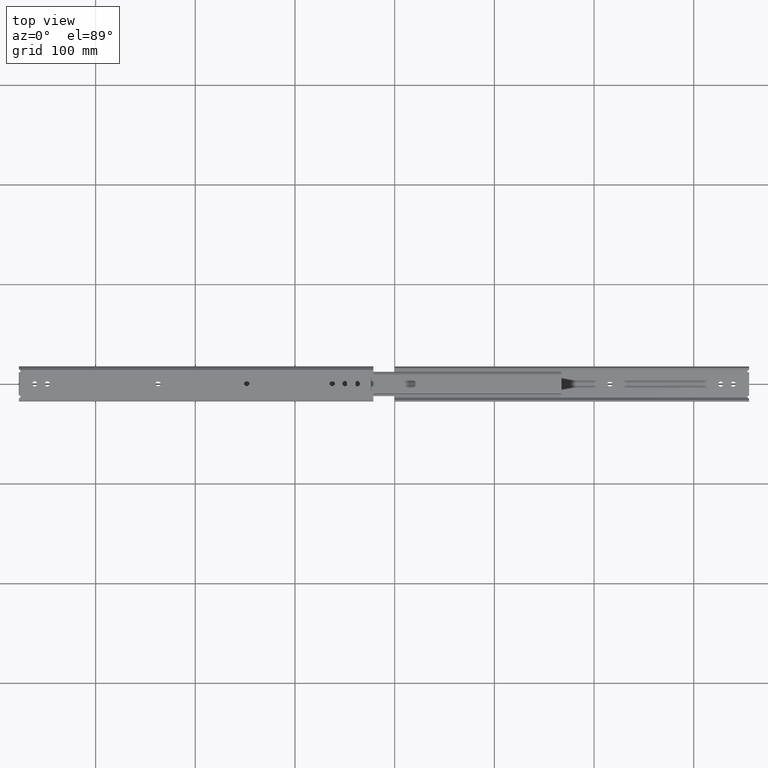
[diagram: clean part render]
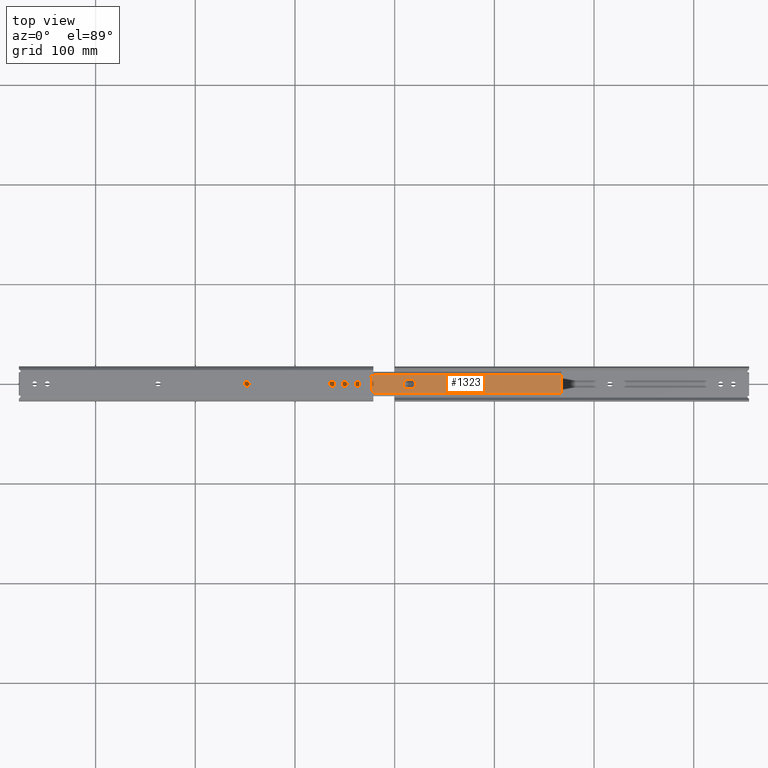
[diagram: same view with one face highlighted and labeled with its STEP entity id]
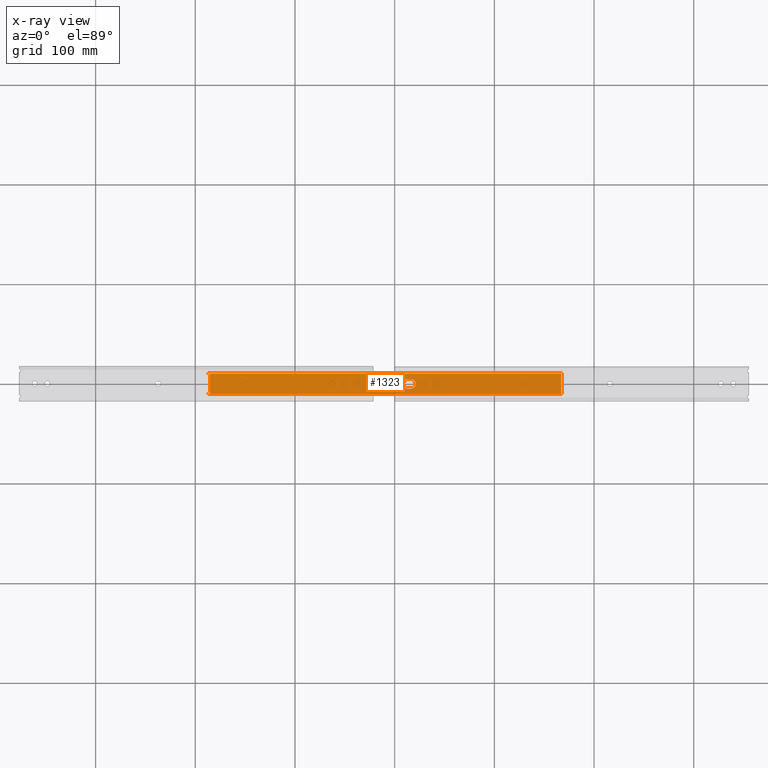
[diagram: x-ray of the same camera — body ghosted, the highlighted face saturated]
A machine part, top view. The second image highlights one B-rep face of the part: STEP entity #1323.
The next image is the same camera in x-ray: the body ghosted, the highlighted face saturated — about 0% of this face is hidden behind the body in this view.
In plain terms, the highlighted planar face has unit normal (0, 0, -1).
Its self-contained STEP definition (entity closure, byte-faithful):
#15 = EDGE_CURVE ( 'NONE', #2241, #528, #2789, .T. ) ;
#20 = CARTESIAN_POINT ( 'NONE',  ( 188.4999999999998600, -10.32509259386303800, -7.999999999999786800 ) ) ;
#29 = VECTOR ( 'NONE', #3100, 1000.000000000000000 ) ;
#169 = EDGE_CURVE ( 'NONE', #326, #2953, #4592, .T. ) ;
#294 = ORIENTED_EDGE ( 'NONE', *, *, #4503, .T. ) ;
#309 = CARTESIAN_POINT ( 'NONE',  ( 188.5000000000000300, 10.32509259386078200, -7.999999999999641200 ) ) ;
#325 = EDGE_CURVE ( 'NONE', #2993, #3315, #2484, .T. ) ;
#326 = VERTEX_POINT ( 'NONE', #4012 ) ;
#327 = CARTESIAN_POINT ( 'NONE',  ( -165.4999999999999700, 10.32509259386325500, -7.999999999999641200 ) ) ;
#412 = DIRECTION ( 'NONE',  ( 1.000000000000000000, -6.982962677686266700E-015, -4.876176775795935800E-029 ) ) ;
#436 = CARTESIAN_POINT ( 'NONE',  ( -165.5000000000000900, -4.749999999998586900, -7.999999999999746900 ) ) ;
#443 = AXIS2_PLACEMENT_3D ( 'NONE', #2965, #4446, #2311 ) ;
#454 = EDGE_CURVE ( 'NONE', #2953, #2993, #3826, .T. ) ;
#472 = AXIS2_PLACEMENT_3D ( 'NONE', #3853, #1725, #4225 ) ;
#528 = VERTEX_POINT ( 'NONE', #3116 ) ;
#707 = EDGE_CURVE ( 'NONE', #3315, #3113, #1747, .T. ) ;
#735 = ORIENTED_EDGE ( 'NONE', *, *, #2522, .T. ) ;
#793 = VECTOR ( 'NONE', #3122, 1000.000000000000000 ) ;
#795 = LINE ( 'NONE', #436, #4489 ) ;
#796 = VECTOR ( 'NONE', #1048, 1000.000000000000000 ) ;
#797 = CARTESIAN_POINT ( 'NONE',  ( -165.5000000000000900, -9.699999999998661700, -7.999999999999781500 ) ) ;
#859 = CARTESIAN_POINT ( 'NONE',  ( 37.69999999999992500, -4.750000000000060400, -7.999999999999746900 ) ) ;
#869 = DIRECTION ( 'NONE',  ( 0.0000000000000000000, 6.982962677686266700E-015, -1.000000000000000000 ) ) ;
#875 = DIRECTION ( 'NONE',  ( 6.982962677686267500E-015, 1.000000000000000000, 6.982962677686267500E-015 ) ) ;
#896 = CARTESIAN_POINT ( 'NONE',  ( -165.5000000000000900, -10.32509259386056600, -7.999999999999786800 ) ) ;
#929 = DIRECTION ( 'NONE',  ( -1.000000000000000000, 6.982962677686266700E-015, 4.876176775795935800E-029 ) ) ;
#933 = EDGE_CURVE ( 'NONE', #1874, #2061, #4314, .T. ) ;
#967 = ORIENTED_EDGE ( 'NONE', *, *, #169, .T. ) ;
#989 = CARTESIAN_POINT ( 'NONE',  ( -163.9000000000000300, 1.332151022761982200E-012, -7.999999999999714000 ) ) ;
#997 = EDGE_LOOP ( 'NONE', ( #967, #3707, #3821, #3325, #1707, #3219, #1162, #2766, #2623, #1702 ) ) ;
#1005 = EDGE_CURVE ( 'NONE', #3855, #4374, #1368, .T. ) ;
#1025 = EDGE_CURVE ( 'NONE', #1371, #1874, #4095, .T. ) ;
#1028 = VECTOR ( 'NONE', #1160, 1000.000000000000000 ) ;
#1048 = DIRECTION ( 'NONE',  ( -1.000000000000000000, 6.982962677686266700E-015, 4.876176775795935800E-029 ) ) ;
#1127 = VECTOR ( 'NONE', #1898, 1000.000000000000000 ) ;
#1160 = DIRECTION ( 'NONE',  ( 6.982962677686267500E-015, 1.000000000000000000, 6.982962677686267500E-015 ) ) ;
#1162 = ORIENTED_EDGE ( 'NONE', *, *, #1755, .T. ) ;
#1197 = EDGE_CURVE ( 'NONE', #2119, #4042, #3286, .T. ) ;
#1224 = EDGE_LOOP ( 'NONE', ( #2547, #4449, #294, #2989, #735 ) ) ;
#1323 = ADVANCED_FACE ( 'NONE', ( #1901, #3810 ), #3222, .F. ) ;
#1368 = LINE ( 'NONE', #1983, #3140 ) ;
#1371 = VERTEX_POINT ( 'NONE', #4515 ) ;
#1533 = VECTOR ( 'NONE', #875, 1000.000000000000000 ) ;
#1695 = AXIS2_PLACEMENT_3D ( 'NONE', #4057, #869, #929 ) ;
#1702 = ORIENTED_EDGE ( 'NONE', *, *, #2298, .T. ) ;
#1707 = ORIENTED_EDGE ( 'NONE', *, *, #1805, .F. ) ;
#1725 = DIRECTION ( 'NONE',  ( 0.0000000000000000000, 6.982962677686266700E-015, -1.000000000000000000 ) ) ;
#1747 = LINE ( 'NONE', #797, #796 ) ;
#1755 = EDGE_CURVE ( 'NONE', #4374, #4042, #2030, .T. ) ;
#1768 = CARTESIAN_POINT ( 'NONE',  ( -163.8999999999999800, 8.200000000001333300, -7.999999999999656300 ) ) ;
#1798 = DIRECTION ( 'NONE',  ( 1.000000000000000000, -6.982962677686266700E-015, -4.876176775795935800E-029 ) ) ;
#1805 = EDGE_CURVE ( 'NONE', #3855, #3113, #2896, .T. ) ;
#1874 = VERTEX_POINT ( 'NONE', #4452 ) ;
#1898 = DIRECTION ( 'NONE',  ( 6.982962677686267500E-015, 1.000000000000000000, 6.982962677686267500E-015 ) ) ;
#1899 = EDGE_CURVE ( 'NONE', #4317, #2119, #3422, .T. ) ;
#1901 = FACE_BOUND ( 'NONE', #1224, .T. ) ;
#1902 = CIRCLE ( 'NONE', #472, 4.750000000000000900 ) ;
#1983 = CARTESIAN_POINT ( 'NONE',  ( -165.5000000000000900, -10.32509259386056600, -7.999999999999786800 ) ) ;
#1999 = CARTESIAN_POINT ( 'NONE',  ( -163.9000000000000300, 1.332151022761982200E-012, -7.999999999999714000 ) ) ;
#2024 = CARTESIAN_POINT ( 'NONE',  ( -165.5000000000000300, 1.343323763046280200E-012, -7.999999999999714000 ) ) ;
#2030 = LINE ( 'NONE', #4385, #1127 ) ;
#2061 = VERTEX_POINT ( 'NONE', #859 ) ;
#2119 = VERTEX_POINT ( 'NONE', #2414 ) ;
#2163 = CARTESIAN_POINT ( 'NONE',  ( -165.4999999999999700, 4.750000000001413100, -7.999999999999681100 ) ) ;
#2206 = CARTESIAN_POINT ( 'NONE',  ( -163.9000000000000900, -8.199999999998667000, -7.999999999999770800 ) ) ;
#2224 = DIRECTION ( 'NONE',  ( -1.000000000000000000, 7.254013220807639700E-015, 5.065450358434250000E-029 ) ) ;
#2241 = VERTEX_POINT ( 'NONE', #4124 ) ;
#2272 = CARTESIAN_POINT ( 'NONE',  ( -165.5000000000000900, -9.699999999998661700, -7.999999999999781500 ) ) ;
#2298 = EDGE_CURVE ( 'NONE', #4317, #326, #4587, .T. ) ;
#2311 = DIRECTION ( 'NONE',  ( -1.000000000000000000, 6.982962677686264300E-015, 0.0000000000000000000 ) ) ;
#2390 = DIRECTION ( 'NONE',  ( -1.000000000000000000, 6.982962677686269100E-015, 0.0000000000000000000 ) ) ;
#2414 = CARTESIAN_POINT ( 'NONE',  ( -165.4999999999999700, 10.32509259386325500, -7.999999999999641200 ) ) ;
#2484 = LINE ( 'NONE', #2762, #4272 ) ;
#2522 = EDGE_CURVE ( 'NONE', #528, #1371, #1902, .T. ) ;
#2547 = ORIENTED_EDGE ( 'NONE', *, *, #1025, .T. ) ;
#2568 = DIRECTION ( 'NONE',  ( -6.982962677686266700E-015, -1.000000000000000000, -6.982962677686266700E-015 ) ) ;
#2623 = ORIENTED_EDGE ( 'NONE', *, *, #1899, .F. ) ;
#2762 = CARTESIAN_POINT ( 'NONE',  ( -163.9000000000000300, 1.332151022761982200E-012, -7.999999999999714000 ) ) ;
#2766 = ORIENTED_EDGE ( 'NONE', *, *, #1197, .F. ) ;
#2789 = CIRCLE ( 'NONE', #443, 4.750000000000000900 ) ;
#2896 = LINE ( 'NONE', #4349, #1028 ) ;
#2953 = VERTEX_POINT ( 'NONE', #1768 ) ;
#2965 = CARTESIAN_POINT ( 'NONE',  ( 34.49999999999992200, -1.640950734767203800E-014, -7.999999999999714000 ) ) ;
#2989 = ORIENTED_EDGE ( 'NONE', *, *, #15, .T. ) ;
#2993 = VERTEX_POINT ( 'NONE', #2206 ) ;
#3061 = AXIS2_PLACEMENT_3D ( 'NONE', #3065, #3786, #2390 ) ;
#3065 = CARTESIAN_POINT ( 'NONE',  ( 37.69999999999995300, -3.934281837985901500E-014, -7.999999999999714000 ) ) ;
#3100 = DIRECTION ( 'NONE',  ( -6.982962677686266700E-015, -1.000000000000000000, -6.982962677686266700E-015 ) ) ;
#3113 = VERTEX_POINT ( 'NONE', #2272 ) ;
#3116 = CARTESIAN_POINT ( 'NONE',  ( 29.74999999999991800, 2.234593551348779900E-014, -7.999999999999714000 ) ) ;
#3122 = DIRECTION ( 'NONE',  ( -6.982962677686266700E-015, -1.000000000000000000, -6.982962677686266700E-015 ) ) ;
#3140 = VECTOR ( 'NONE', #1798, 1000.000000000000000 ) ;
#3188 = VECTOR ( 'NONE', #412, 1000.000000000000000 ) ;
#3219 = ORIENTED_EDGE ( 'NONE', *, *, #1005, .T. ) ;
#3222 = PLANE ( 'NONE',  #1695 ) ;
#3286 = LINE ( 'NONE', #327, #3188 ) ;
#3315 = VERTEX_POINT ( 'NONE', #4242 ) ;
#3325 = ORIENTED_EDGE ( 'NONE', *, *, #707, .T. ) ;
#3387 = DIRECTION ( 'NONE',  ( 1.000000000000000000, -6.982962677686266700E-015, -4.876176775795935800E-029 ) ) ;
#3422 = LINE ( 'NONE', #2024, #1533 ) ;
#3556 = DIRECTION ( 'NONE',  ( 1.000000000000000000, -7.254013220807639700E-015, -5.065450358434250000E-029 ) ) ;
#3632 = CARTESIAN_POINT ( 'NONE',  ( -165.4999999999999700, 9.700000000001333300, -7.999999999999646500 ) ) ;
#3707 = ORIENTED_EDGE ( 'NONE', *, *, #454, .T. ) ;
#3786 = DIRECTION ( 'NONE',  ( 0.0000000000000000000, 6.982962677686266700E-015, -1.000000000000000000 ) ) ;
#3810 = FACE_OUTER_BOUND ( 'NONE', #997, .T. ) ;
#3821 = ORIENTED_EDGE ( 'NONE', *, *, #325, .T. ) ;
#3826 = LINE ( 'NONE', #1999, #29 ) ;
#3853 = CARTESIAN_POINT ( 'NONE',  ( 34.49999999999992200, -1.640950734767203800E-014, -7.999999999999714000 ) ) ;
#3855 = VERTEX_POINT ( 'NONE', #896 ) ;
#3968 = VECTOR ( 'NONE', #3556, 1000.000000000000000 ) ;
#4012 = CARTESIAN_POINT ( 'NONE',  ( -163.8999999999999800, 9.700000000001326200, -7.999999999999646500 ) ) ;
#4042 = VERTEX_POINT ( 'NONE', #309 ) ;
#4057 = CARTESIAN_POINT ( 'NONE',  ( -165.5000000000000300, 1.343323763046280200E-012, -7.999999999999714000 ) ) ;
#4095 = LINE ( 'NONE', #2163, #3968 ) ;
#4106 = CARTESIAN_POINT ( 'NONE',  ( -165.4999999999999700, 9.700000000001336900, -7.999999999999646500 ) ) ;
#4124 = CARTESIAN_POINT ( 'NONE',  ( 34.49999999999989300, -4.750000000000037300, -7.999999999999746900 ) ) ;
#4225 = DIRECTION ( 'NONE',  ( -1.000000000000000000, 6.982962677686264300E-015, 0.0000000000000000000 ) ) ;
#4242 = CARTESIAN_POINT ( 'NONE',  ( -163.9000000000000900, -9.699999999998672400, -7.999999999999781500 ) ) ;
#4272 = VECTOR ( 'NONE', #2568, 1000.000000000000000 ) ;
#4314 = CIRCLE ( 'NONE', #3061, 4.749999999999997300 ) ;
#4317 = VERTEX_POINT ( 'NONE', #3632 ) ;
#4349 = CARTESIAN_POINT ( 'NONE',  ( -165.5000000000000300, 1.343323763046280200E-012, -7.999999999999714000 ) ) ;
#4374 = VERTEX_POINT ( 'NONE', #20 ) ;
#4385 = CARTESIAN_POINT ( 'NONE',  ( 188.4999999999999400, -1.128645024854657900E-012, -7.999999999999714000 ) ) ;
#4446 = DIRECTION ( 'NONE',  ( 0.0000000000000000000, 6.982962677686266700E-015, -1.000000000000000000 ) ) ;
#4449 = ORIENTED_EDGE ( 'NONE', *, *, #933, .T. ) ;
#4452 = CARTESIAN_POINT ( 'NONE',  ( 37.69999999999998200, 4.749999999999939600, -7.999999999999681100 ) ) ;
#4484 = VECTOR ( 'NONE', #3387, 1000.000000000000000 ) ;
#4489 = VECTOR ( 'NONE', #2224, 1000.000000000000000 ) ;
#4503 = EDGE_CURVE ( 'NONE', #2061, #2241, #795, .T. ) ;
#4515 = CARTESIAN_POINT ( 'NONE',  ( 34.49999999999995000, 4.749999999999962700, -7.999999999999681100 ) ) ;
#4587 = LINE ( 'NONE', #4106, #4484 ) ;
#4592 = LINE ( 'NONE', #989, #793 ) ;